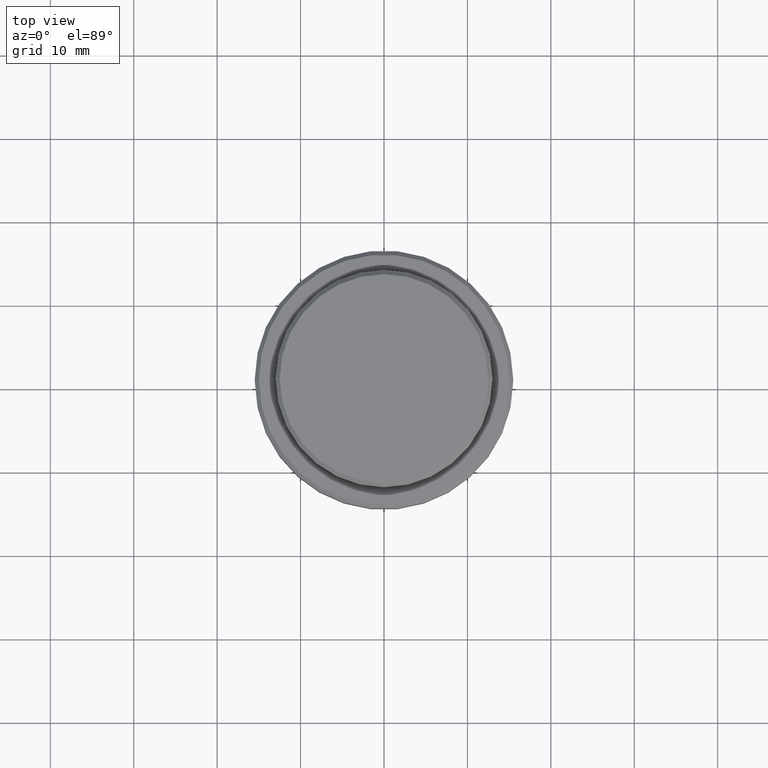
[diagram: clean part render]
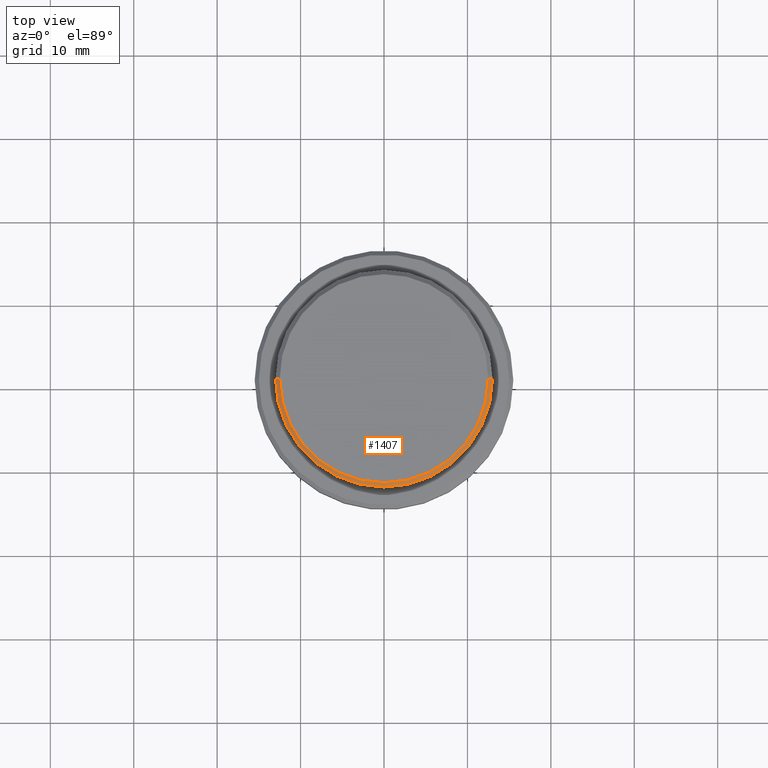
[diagram: same view with one face highlighted and labeled with its STEP entity id]
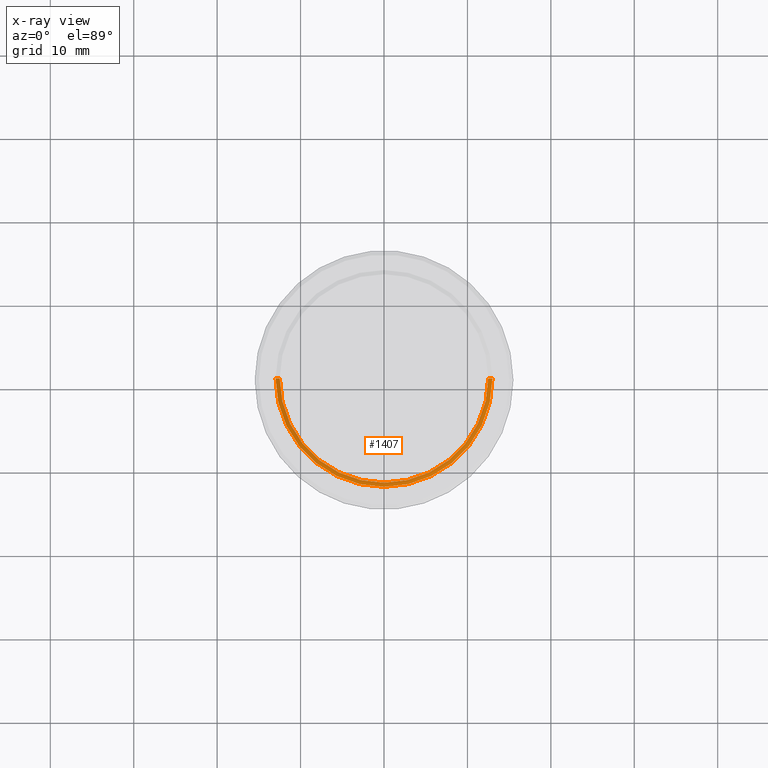
[diagram: x-ray of the same camera — body ghosted, the highlighted face saturated]
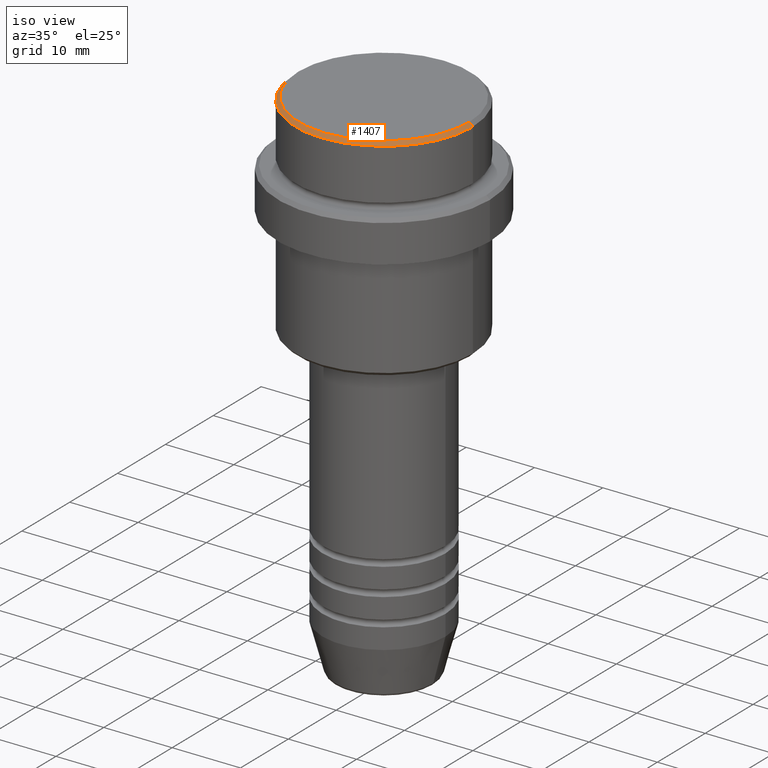
[diagram: same view with one face highlighted and labeled with its STEP entity id]
A machine part, top view. The second image highlights one B-rep face of the part: STEP entity #1407.
The next image is the same camera in x-ray: the body ghosted, the highlighted face saturated — about 0% of this face is hidden behind the body in this view.
A second angle (iso view) of the same face is appended — the face is thin or edge-on in the first view.
In plain terms, the highlighted conical surface has half-angle 45 deg.
Its self-contained STEP definition (entity closure, byte-faithful):
#4 = ORIENTED_EDGE ( 'NONE', *, *, #252, .F. ) ;
#32 = EDGE_CURVE ( 'NONE', #425, #935, #1341, .T. ) ;
#64 = CARTESIAN_POINT ( 'NONE',  ( 12.50000000000001243, 1.530808498934193099E-15, 0.000000000000000000 ) ) ;
#82 = CARTESIAN_POINT ( 'NONE',  ( -12.50000000000001243, 0.000000000000000000, 0.000000000000000000 ) ) ;
#84 = AXIS2_PLACEMENT_3D ( 'NONE', #495, #269, #937 ) ;
#96 = VECTOR ( 'NONE', #1150, 1000.000000000000000 ) ;
#151 = AXIS2_PLACEMENT_3D ( 'NONE', #1179, #1050, #813 ) ;
#152 = VECTOR ( 'NONE', #826, 1000.000000000000000 ) ;
#252 = EDGE_CURVE ( 'NONE', #935, #884, #1158, .T. ) ;
#269 = DIRECTION ( 'NONE',  ( -0.000000000000000000, -0.000000000000000000, 1.000000000000000000 ) ) ;
#291 = LINE ( 'NONE', #968, #152 ) ;
#397 = ORIENTED_EDGE ( 'NONE', *, *, #1376, .F. ) ;
#400 = FACE_OUTER_BOUND ( 'NONE', #1165, .T. ) ;
#425 = VERTEX_POINT ( 'NONE', #940 ) ;
#466 = EDGE_CURVE ( 'NONE', #1382, #884, #291, .T. ) ;
#493 = CARTESIAN_POINT ( 'NONE',  ( 0.000000000000000000, 0.000000000000000000, -0.5000000000000038858 ) ) ;
#495 = CARTESIAN_POINT ( 'NONE',  ( 0.000000000000000000, 0.000000000000000000, 0.000000000000000000 ) ) ;
#515 = ORIENTED_EDGE ( 'NONE', *, *, #32, .F. ) ;
#531 = CONICAL_SURFACE ( 'NONE', #151, 12.50000000000001243, 0.7853981633974291832 ) ;
#695 = CIRCLE ( 'NONE', #84, 12.50000000000001243 ) ;
#813 = DIRECTION ( 'NONE',  ( -1.000000000000000000, 0.000000000000000000, 0.000000000000000000 ) ) ;
#818 = DIRECTION ( 'NONE',  ( 1.000000000000000000, 0.000000000000000000, 0.000000000000000000 ) ) ;
#826 = DIRECTION ( 'NONE',  ( -0.7071067811865340280, 0.000000000000000000, -0.7071067811865610064 ) ) ;
#884 = VERTEX_POINT ( 'NONE', #1232 ) ;
#935 = VERTEX_POINT ( 'NONE', #1167 ) ;
#936 = ORIENTED_EDGE ( 'NONE', *, *, #466, .T. ) ;
#937 = DIRECTION ( 'NONE',  ( 1.000000000000000000, 0.000000000000000000, 0.000000000000000000 ) ) ;
#940 = CARTESIAN_POINT ( 'NONE',  ( 12.50000000000001243, 1.561424668912876097E-15, 0.000000000000000000 ) ) ;
#968 = CARTESIAN_POINT ( 'NONE',  ( -12.50000000000001243, 0.000000000000000000, 0.000000000000000000 ) ) ;
#1050 = DIRECTION ( 'NONE',  ( 0.000000000000000000, 0.000000000000000000, -1.000000000000000000 ) ) ;
#1150 = DIRECTION ( 'NONE',  ( 0.7071067811865340280, 8.659560562354767690E-17, -0.7071067811865610064 ) ) ;
#1158 = CIRCLE ( 'NONE', #1343, 12.99999999999999822 ) ;
#1165 = EDGE_LOOP ( 'NONE', ( #515, #397, #936, #4 ) ) ;
#1167 = CARTESIAN_POINT ( 'NONE',  ( 12.99999999999999822, 0.000000000000000000, -0.5000000000000038858 ) ) ;
#1179 = CARTESIAN_POINT ( 'NONE',  ( 0.000000000000000000, 0.000000000000000000, 0.000000000000000000 ) ) ;
#1232 = CARTESIAN_POINT ( 'NONE',  ( -12.99999999999999822, 1.592040838891558898E-15, -0.5000000000000038858 ) ) ;
#1262 = DIRECTION ( 'NONE',  ( 0.000000000000000000, 0.000000000000000000, -1.000000000000000000 ) ) ;
#1341 = LINE ( 'NONE', #64, #96 ) ;
#1343 = AXIS2_PLACEMENT_3D ( 'NONE', #493, #1262, #818 ) ;
#1376 = EDGE_CURVE ( 'NONE', #1382, #425, #695, .T. ) ;
#1382 = VERTEX_POINT ( 'NONE', #82 ) ;
#1407 = ADVANCED_FACE ( 'NONE', ( #400 ), #531, .T. ) ;